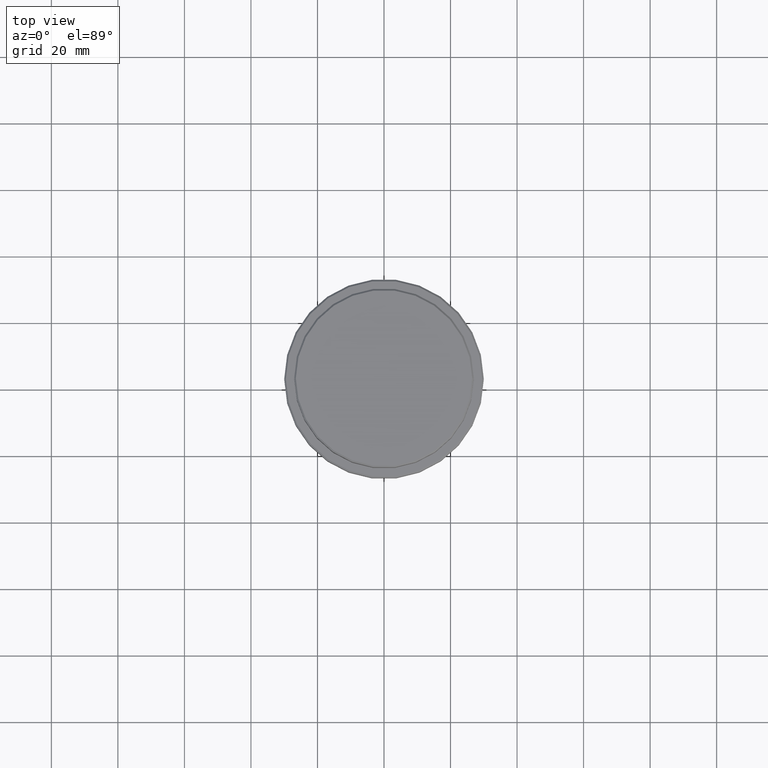
[diagram: clean part render]
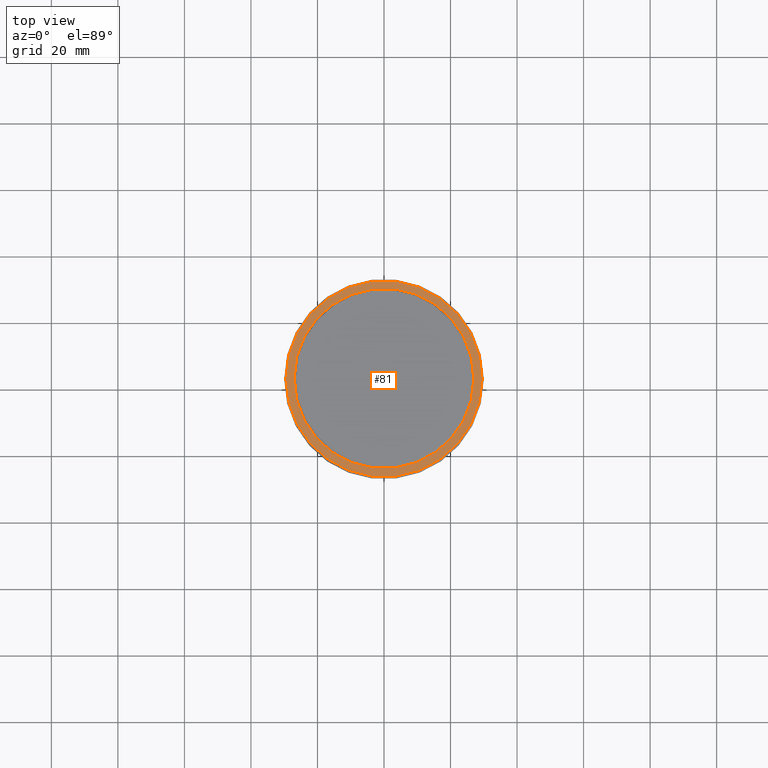
[diagram: same view with one face highlighted and labeled with its STEP entity id]
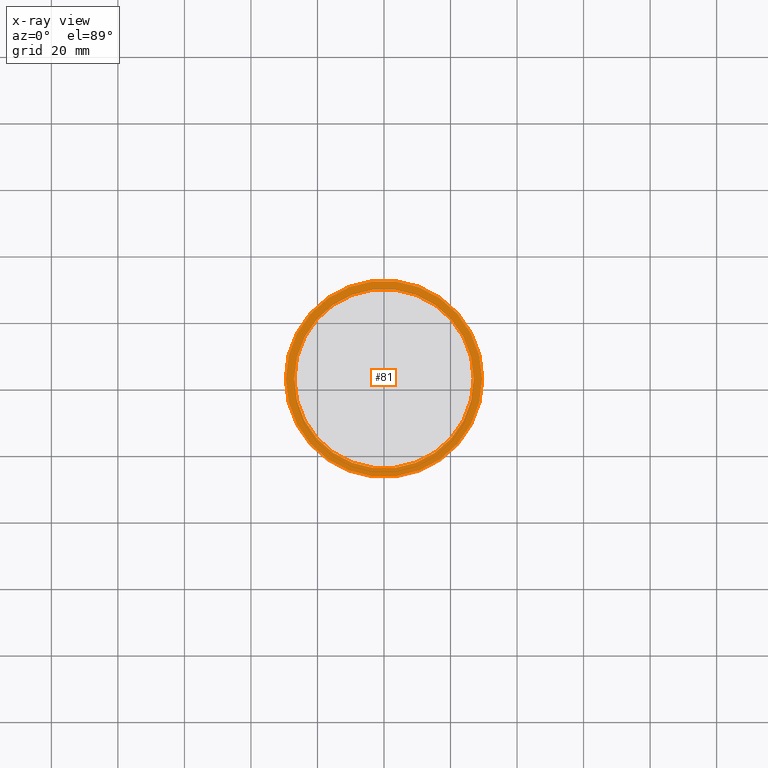
[diagram: x-ray of the same camera — body ghosted, the highlighted face saturated]
A machine part, top view. The second image highlights one B-rep face of the part: STEP entity #81.
The next image is the same camera in x-ray: the body ghosted, the highlighted face saturated — about 0% of this face is hidden behind the body in this view.
In plain terms, the highlighted planar face has unit normal (0, -0, 1).
Its self-contained STEP definition (entity closure, byte-faithful):
#46 = VERTEX_POINT ( 'NONE', #1392 ) ;
#73 = CARTESIAN_POINT ( 'NONE',  ( 29.49999999999997158, 3.643324227463373813E-15, -12.00000000000000178 ) ) ;
#81 = ADVANCED_FACE ( 'NONE', ( #532, #969 ), #543, .T. ) ;
#85 = DIRECTION ( 'NONE',  ( 1.000000000000000000, 0.000000000000000000, 0.000000000000000000 ) ) ;
#119 = DIRECTION ( 'NONE',  ( 0.000000000000000000, -0.000000000000000000, 1.000000000000000000 ) ) ;
#193 = AXIS2_PLACEMENT_3D ( 'NONE', #579, #248, #1352 ) ;
#223 = CARTESIAN_POINT ( 'NONE',  ( 0.000000000000000000, 26.49999999999999645, -12.00000000000000178 ) ) ;
#248 = DIRECTION ( 'NONE',  ( 0.000000000000000000, 0.000000000000000000, -1.000000000000000000 ) ) ;
#261 = AXIS2_PLACEMENT_3D ( 'NONE', #386, #1153, #1237 ) ;
#299 = EDGE_CURVE ( 'NONE', #452, #351, #1377, .T. ) ;
#316 = EDGE_CURVE ( 'NONE', #46, #1347, #818, .T. ) ;
#351 = VERTEX_POINT ( 'NONE', #380 ) ;
#380 = CARTESIAN_POINT ( 'NONE',  ( -29.49999999999997158, 0.000000000000000000, -12.00000000000000178 ) ) ;
#386 = CARTESIAN_POINT ( 'NONE',  ( 0.000000000000000000, 0.000000000000000000, -12.00000000000000178 ) ) ;
#452 = VERTEX_POINT ( 'NONE', #73 ) ;
#455 = ORIENTED_EDGE ( 'NONE', *, *, #1290, .T. ) ;
#509 = CARTESIAN_POINT ( 'NONE',  ( 26.99999999999999289, 0.000000000000000000, -12.00000000000000178 ) ) ;
#532 = FACE_OUTER_BOUND ( 'NONE', #730, .T. ) ;
#536 = AXIS2_PLACEMENT_3D ( 'NONE', #223, #119, #788 ) ;
#543 = PLANE ( 'NONE',  #536 ) ;
#579 = CARTESIAN_POINT ( 'NONE',  ( 0.000000000000000000, 0.000000000000000000, -12.00000000000000178 ) ) ;
#730 = EDGE_LOOP ( 'NONE', ( #455, #764 ) ) ;
#764 = ORIENTED_EDGE ( 'NONE', *, *, #299, .T. ) ;
#788 = DIRECTION ( 'NONE',  ( 1.000000000000000000, 0.000000000000000000, 0.000000000000000000 ) ) ;
#818 = CIRCLE ( 'NONE', #1355, 26.99999999999999289 ) ;
#822 = CIRCLE ( 'NONE', #956, 29.49999999999997158 ) ;
#927 = DIRECTION ( 'NONE',  ( 0.000000000000000000, 0.000000000000000000, -1.000000000000000000 ) ) ;
#940 = DIRECTION ( 'NONE',  ( 1.000000000000000000, 0.000000000000000000, 0.000000000000000000 ) ) ;
#942 = EDGE_LOOP ( 'NONE', ( #1337, #1028 ) ) ;
#956 = AXIS2_PLACEMENT_3D ( 'NONE', #1330, #1073, #85 ) ;
#969 = FACE_BOUND ( 'NONE', #942, .T. ) ;
#1028 = ORIENTED_EDGE ( 'NONE', *, *, #316, .T. ) ;
#1050 = CARTESIAN_POINT ( 'NONE',  ( 0.000000000000000000, 0.000000000000000000, -12.00000000000000178 ) ) ;
#1073 = DIRECTION ( 'NONE',  ( -0.000000000000000000, -0.000000000000000000, 1.000000000000000000 ) ) ;
#1153 = DIRECTION ( 'NONE',  ( -0.000000000000000000, -0.000000000000000000, 1.000000000000000000 ) ) ;
#1200 = CIRCLE ( 'NONE', #193, 26.99999999999999289 ) ;
#1237 = DIRECTION ( 'NONE',  ( 1.000000000000000000, 0.000000000000000000, 0.000000000000000000 ) ) ;
#1252 = EDGE_CURVE ( 'NONE', #1347, #46, #1200, .T. ) ;
#1290 = EDGE_CURVE ( 'NONE', #351, #452, #822, .T. ) ;
#1330 = CARTESIAN_POINT ( 'NONE',  ( 0.000000000000000000, 0.000000000000000000, -12.00000000000000178 ) ) ;
#1337 = ORIENTED_EDGE ( 'NONE', *, *, #1252, .T. ) ;
#1347 = VERTEX_POINT ( 'NONE', #509 ) ;
#1352 = DIRECTION ( 'NONE',  ( 1.000000000000000000, 0.000000000000000000, 0.000000000000000000 ) ) ;
#1355 = AXIS2_PLACEMENT_3D ( 'NONE', #1050, #927, #940 ) ;
#1377 = CIRCLE ( 'NONE', #261, 29.49999999999997158 ) ;
#1392 = CARTESIAN_POINT ( 'NONE',  ( -26.99999999999999289, 3.306546357697852944E-15, -12.00000000000000178 ) ) ;